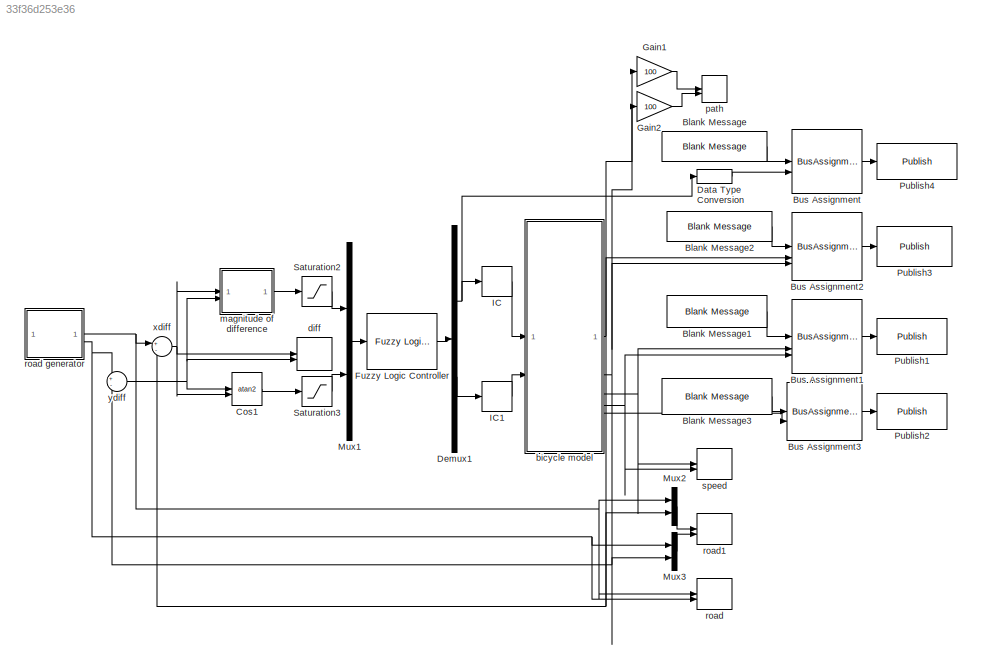
MODEL slx_33f36d253e36
KIND model
CONFIG AbsTol = auto
CONFIG EnableMultiTasking = off
CONFIG FixedStep = auto
CONFIG MaxStep = auto
CONFIG MinStep = auto
CONFIG RelTol = 1e-3
CONFIG SampleTimeConstraint = Unconstrained
CONFIG SolverName = VariableStepAuto
CONFIG StartTime = 0.0
CONFIG StopTime = 10.0
BLOCK [Reference] Blank Message  REF=ros2lib/Blank Message  (lib defined in slx_3c1549211f48)
  SourceBlock = ros2lib/Blank Message
  SourceType = ROS2 Blank Message
BLOCK [Reference] Blank Message1  REF=ros2lib/Blank Message  (lib defined in slx_3c1549211f48)
  SourceBlock = ros2lib/Blank Message
  SourceType = ROS2 Blank Message
BLOCK [Reference] Blank Message2  REF=ros2lib/Blank Message  (lib defined in slx_3c1549211f48)
  SourceBlock = ros2lib/Blank Message
  SourceType = ROS2 Blank Message
BLOCK [Reference] Blank Message3  REF=ros2lib/Blank Message  (lib defined in slx_3c1549211f48)
  SourceBlock = ros2lib/Blank Message
  SourceType = ROS2 Blank Message
BLOCK [BusAssignment] Bus Assignment
  AssignedSignals = linear.x
BLOCK [BusAssignment] Bus Assignment1
  AssignedSignals = linear.x,linear.y
BLOCK [BusAssignment] Bus Assignment2
  AssignedSignals = position.x,position.y
BLOCK [BusAssignment] Bus Assignment3
  AssignedSignals = angular.z
BLOCK [Trigonometry] Cos1
  Operator = atan2
BLOCK [DataTypeConversion] Data Type Conversion
  RndMeth = Floor
  SaturateOnIntegerOverflow = off
BLOCK [Demux] Demux1
  Outputs = 2
BLOCK [Reference] Fuzzy Logic Controller  REF=fuzblock/Fuzzy Logic   (lib defined in mdl_858b3b3e7478)
Controller
  SourceBlock = fuzblock/Fuzzy Logic \nController
  SourceType = Fuzzy Inference System
BLOCK [Gain] Gain1
  Gain = 100
BLOCK [Gain] Gain2
  Gain = 100
BLOCK [InitialCondition] IC
  Value = 0
BLOCK [InitialCondition] IC1
  Value = 0
BLOCK [Mux] Mux1
  DisplayOption = bar
  Inputs = 2
BLOCK [Mux] Mux2
  DisplayOption = bar
  Inputs = 2
BLOCK [Mux] Mux3
  DisplayOption = bar
  Inputs = 2
BLOCK [Reference] Publish1  REF=ros2lib/Publish  (lib defined in slx_3c1549211f48)
  SourceBlock = ros2lib/Publish
  SourceType = ROS2 Publish
BLOCK [Reference] Publish2  REF=ros2lib/Publish  (lib defined in slx_3c1549211f48)
  SourceBlock = ros2lib/Publish
  SourceType = ROS2 Publish
BLOCK [Reference] Publish3  REF=ros2lib/Publish  (lib defined in slx_3c1549211f48)
  SourceBlock = ros2lib/Publish
  SourceType = ROS2 Publish
BLOCK [Reference] Publish4  REF=ros2lib/Publish  (lib defined in slx_3c1549211f48)
  SourceBlock = ros2lib/Publish
  SourceType = ROS2 Publish
BLOCK [Saturate] Saturation2
  LinearizeAsGain = off
  LowerLimit = 0
  UpperLimit = 100
BLOCK [Saturate] Saturation3
  LowerLimit = -1
  UpperLimit = 1
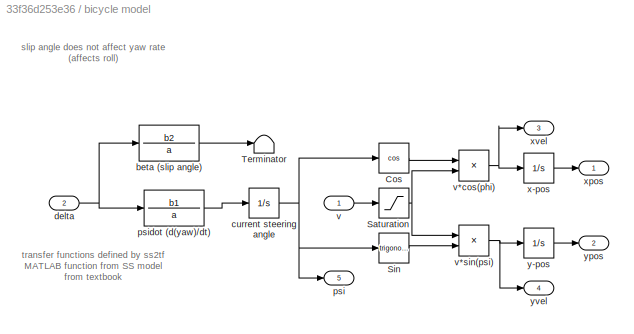
BLOCK [SubSystem] bicycle model
BLOCK [Trigonometry] bicycle model/Cos
  Operator = cos
BLOCK [Saturate] bicycle model/Saturation
  LowerLimit = -30
  UpperLimit = 30
BLOCK [Trigonometry] bicycle model/Sin
BLOCK [Terminator] bicycle model/Terminator
BLOCK [TransferFcn] bicycle model/beta (slip angle)
  ContinuousStateAttributes = 'beta'
  Denominator = a
  Numerator = b2
BLOCK [Integrator] bicycle model/current steering angle
BLOCK [Inport] bicycle model/delta
  OutDataTypeStr = double
  Port = 2
BLOCK [Outport] bicycle model/psi
  Port = 5
BLOCK [TransferFcn] bicycle model/psidot (d(yaw)//dt)
  ContinuousStateAttributes = 'psidot'
  Denominator = a
  Numerator = b1
  ParameterTunability = Optimized
BLOCK [Inport] bicycle model/v
BLOCK [Product] bicycle model/v*cos(phi)
BLOCK [Product] bicycle model/v*sin(psi)
BLOCK [Integrator] bicycle model/x-pos
BLOCK [Outport] bicycle model/xpos
BLOCK [Outport] bicycle model/xvel
  Port = 3
BLOCK [Integrator] bicycle model/y-pos
BLOCK [Outport] bicycle model/ypos
  Port = 2
BLOCK [Outport] bicycle model/yvel
  Port = 4
BLOCK [Record] diff
  CompatibilityTag = XY
  FileSettingsInternal = {"entries":[{"content":{"excelSettings":{"content":{},"type":"Streamout.ExcelSettings"}},"type":"Streamout.FileSettingStorage","uuid":"e11c2646-620e-4821-b31f-06dc8f4cd87f"}],"packageUris":["http://schema.mathworks.com/mf0/streamout_blocks/R2020a"],"version":"1.0"}
  Layout = [1 1]
  SignalsInternal = {"entries":[{"content":{"signals":[{"content":{"blockPath":["vehicleModel_23a/diff"],"dimensions":[1],"domain":"vehicleModel_23a/diff","lineColor":"#edb120","plots":[1],"port":1,"signalID":48,"signalName":"xdiff"},"type":"RecordBlkView.Signal","uuid":"8016eeb5-851e-4628-929a-2e9a0eab76ef"},{"content":{"blockPath":["vehicleModel_23a/diff"],"dimensions":[1],"domain":"vehicleModel_23a/diff","lineColo...<+323ch>
  VisualizationBindings = {"xyplotplugin":{"info":[{"series":[{"bindingParametersList":[{"parameter":"X-Axis","signalID":48,"signalName":"xdiff"},{"parameter":"Y-Axis","signalID":51,"signalName":"ydiff"}],"seriesID":14047}],"subplotID":1}]}}
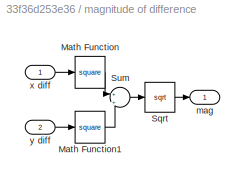
BLOCK [SubSystem] magnitude of difference
BLOCK [Math] magnitude of difference/Math Function
  Operator = square
BLOCK [Math] magnitude of difference/Math Function1
  Operator = square
BLOCK [Sqrt] magnitude of difference/Sqrt
BLOCK [Sum] magnitude of difference/Sum
  Inputs = +|+
BLOCK [Outport] magnitude of difference/mag
BLOCK [Inport] magnitude of difference/x diff
BLOCK [Inport] magnitude of difference/y diff
  Port = 2
BLOCK [Record] path
  CompatibilityTag = XY
  FileSettingsInternal = {"entries":[{"content":{"excelSettings":{"content":{},"type":"Streamout.ExcelSettings"}},"type":"Streamout.FileSettingStorage","uuid":"969ffc95-b704-45a7-aa8e-c06d5542069b"}],"packageUris":["http://schema.mathworks.com/mf0/streamout_blocks/R2020a"],"version":"1.0"}
  Layout = [1 1]
  SignalsInternal = {"entries":[{"content":{"signals":[{"content":{"blockPath":["vehicleModel_23a/path"],"dimensions":[1],"domain":"vehicleModel_23a/path","lineColor":"#77ac30","plots":[1],"port":1,"signalID":40,"signalName":"Gain"},"type":"RecordBlkView.Signal","uuid":"191c97f3-87f4-45f7-98a3-db8a951101c5"},{"content":{"blockPath":["vehicleModel_23a/path"],"dimensions":[1],"domain":"vehicleModel_23a/path","lineColor...<+322ch>
  VisualizationBindings = {"xyplotplugin":{"info":[{"series":[{"bindingParametersList":[{"parameter":"X-Axis","signalID":40,"signalName":"Gain"},{"parameter":"Y-Axis","signalID":43,"signalName":"Gain1"}],"seriesID":43259}],"subplotID":1}]}}
BLOCK [Record] road
  CompatibilityTag = XY
  FileSettingsInternal = {"entries":[{"content":{"excelSettings":{"content":{},"type":"Streamout.ExcelSettings"}},"type":"Streamout.FileSettingStorage","uuid":"0df6bbcf-3274-4560-95d0-a5963d703d9e"}],"packageUris":["http://schema.mathworks.com/mf0/streamout_blocks/R2020a"],"version":"1.0"}
  Layout = [1 1]
  SignalsInternal = {"entries":[{"content":{"signals":[{"content":{"blockPath":["vehicleModel_23a/road"],"dimensions":[1],"domain":"vehicleModel_23a/road","lineColor":"#a2142f","plots":[1],"port":1,"signalID":32,"signalName":"road generator:1"},"type":"RecordBlkView.Signal","uuid":"270aa9a5-a50a-4e5f-92ce-1ad2cb7d9aa4"},{"content":{"blockPath":["vehicleModel_23a/road"],"dimensions":[1],"domain":"vehicleModel_23a/road...<+345ch>
  VisualizationBindings = {"xyplotplugin":{"info":[{"series":[{"bindingParametersList":[{"parameter":"X-Axis","signalID":32,"signalName":"road generator:1"},{"parameter":"Y-Axis","signalID":35,"signalName":"road generator:2"}],"seriesID":20322}],"subplotID":1}]}}
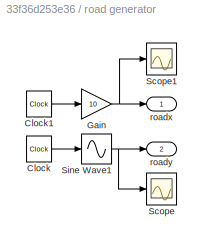
BLOCK [SubSystem] road generator
BLOCK [Clock] road generator/Clock
  Decimation = 1
BLOCK [Clock] road generator/Clock1
  Decimation = 1
BLOCK [Gain] road generator/Gain
  Gain = 10
BLOCK [Scope] road generator/Scope
  Floating = off
  NumInputPorts = 1
  ScopeSpecificationString = Simulink.scopes.TimeScopeBlockCfg('CurrentConfiguration', extmgr.ConfigurationSet(extmgr.Configuration('Core','General UI',true),extmgr.Configuration('Core','Source UI',true),extmgr.Configuration('Sources','WiredSimulink',true,'DataLoggingVariableName','ScopeData1'),extmgr.Configuration('Visuals','Time Domain',true,'SerializedDisplays',{struct('MinYLimReal','-12.49997','MaxYLimReal','12.49999','YL...<+1464ch>
BLOCK [Scope] road generator/Scope1
  Floating = off
  NumInputPorts = 1
  ScopeSpecificationString = Simulink.scopes.TimeScopeBlockCfg('CurrentConfiguration', extmgr.ConfigurationSet(extmgr.Configuration('Core','General UI',true),extmgr.Configuration('Core','Source UI',true),extmgr.Configuration('Sources','WiredSimulink',true,'DataLoggingVariableName','ScopeData2'),extmgr.Configuration('Visuals','Time Domain',true,'SerializedDisplays',{struct('MinYLimReal','-125.00000','MaxYLimReal','1125.00000',...<+1445ch>
BLOCK [Sin] road generator/Sine Wave1
  Amplitude = 10
  Frequency = 0.05
  Phase = 1
  SampleTime = 0
  TimeSource = Use external signal
BLOCK [Outport] road generator/roadx
BLOCK [Outport] road generator/roady
  Port = 2
BLOCK [Record] road1
  CompatibilityTag = XY
  FileSettingsInternal = {"entries":[{"content":{"excelSettings":{"content":{},"type":"Streamout.ExcelSettings"}},"type":"Streamout.FileSettingStorage","uuid":"477410f6-626d-4269-8c7e-1abe136939a3"}],"packageUris":["http://schema.mathworks.com/mf0/streamout_blocks/R2020a"],"version":"1.0"}
  Layout = [1 1]
  SignalsInternal = {"entries":[{"content":{"signals":[{"content":{"blockPath":["vehicleModel_23a/road1"],"dimensions":[2],"domain":"vehicleModel_23a/road1","hasChildren":true,"lineColor":"#a2142f","port":1,"signalID":8,"signalName":"Mux1"},"type":"RecordBlkView.Signal","uuid":"77dfd98c-52af-46ef-b0dc-734aa25e88e8"},{"content":{"blockPath":["vehicleModel_23a/road1"],"channel":[1],"dimensions":[2],"domain":"vehicleMod...<+1475ch>
  VisualizationBindings = {"xyplotplugin":{"info":[{"series":[{"bindingParametersList":[{"parameter":"X-Axis","signalID":10,"signalName":"Mux1(2)"},{"parameter":"Y-Axis","signalID":16,"signalName":"Mux2(1)"}],"seriesID":13883},{"bindingParametersList":[{"parameter":"X-Axis","signalID":9,"signalName":"Mux1(1)"},{"parameter":"Y-Axis","signalID":17,"signalName":"Mux2(2)"}],"seriesID":65135}],"subplotID":1}]}}
BLOCK [Record] speed
  CompatibilityTag = XY
  FileSettingsInternal = {"entries":[{"content":{"excelSettings":{"content":{},"type":"Streamout.ExcelSettings"}},"type":"Streamout.FileSettingStorage","uuid":"9188d7cb-5000-4f88-9939-3ef4f1a89e9c"}],"packageUris":["http://schema.mathworks.com/mf0/streamout_blocks/R2020a"],"version":"1.0"}
  Layout = [1 1]
  SignalsInternal = {"entries":[{"content":{"signals":[{"content":{"blockPath":["vehicleModel_23a/speed"],"dimensions":[1],"domain":"vehicleModel_23a/speed","lineColor":"#ff6929","plots":[1],"port":1,"signalID":24,"signalName":"bicycle model:3"},"type":"RecordBlkView.Signal","uuid":"1306c953-2d23-4a8f-88bc-7639a5a32ec7"},{"content":{"blockPath":["vehicleModel_23a/speed"],"dimensions":[1],"domain":"vehicleModel_23a/sp...<+347ch>
  VisualizationBindings = {"xyplotplugin":{"info":[{"series":[{"bindingParametersList":[{"parameter":"X-Axis","signalID":24,"signalName":"bicycle model:3"},{"parameter":"Y-Axis","signalID":27,"signalName":"bicycle model:4"}],"seriesID":11813}],"subplotID":1}]}}
BLOCK [Sum] xdiff
  Inputs = +-
BLOCK [Sum] ydiff
  Inputs = +-
ANNOTATION bicycle model: slip angle does not affect yaw rate (affects roll)
ANNOTATION bicycle model: transfer functions defined by ss2tf MATLAB function from SS model from textbook
LINE Blank Message1:1 -> Bus Assignment1:1
LINE Blank Message2:1 -> Bus Assignment2:1
LINE Blank Message3:1 -> Bus Assignment3:1
LINE Blank Message:1 -> Bus Assignment:1
LINE Bus Assignment1:1 -> Publish1:1
LINE Bus Assignment2:1 -> Publish3:1
LINE Bus Assignment3:1 -> Publish2:1
LINE Bus Assignment:1 -> Publish4:1
LINE Cos1:1 -> Saturation3:1
LINE Data Type Conversion:1 -> Bus Assignment:2
NET Demux1:1 -> Data Type Conversion:1, IC:1
LINE Demux1:2 -> IC1:1
LINE Fuzzy Logic Controller:1 -> Demux1:1
LINE Gain1:1 -> path:1
LINE Gain2:1 -> path:2
LINE IC1:1 -> bicycle model:2
LINE IC:1 -> bicycle model:1
LINE Mux1:1 -> Fuzzy Logic Controller:1
LINE Mux2:1 -> road1:1
LINE Mux3:1 -> road1:2
LINE Saturation2:1 -> Mux1:1
LINE Saturation3:1 -> Mux1:2
LINE bicycle model/Cos:1 -> bicycle model/v*cos(phi):1
NET bicycle model/Saturation:1 -> bicycle model/v*cos(phi):2, bicycle model/v*sin(psi):1
LINE bicycle model/Sin:1 -> bicycle model/v*sin(psi):2
LINE bicycle model/beta (slip angle):1 -> bicycle model/Terminator:1
NET bicycle model/current steering angle:1 -> bicycle model/Cos:1, bicycle model/Sin:1, bicycle model/psi:1
NET bicycle model/delta:1 -> bicycle model/beta (slip angle):1, bicycle model/psidot (d(yaw)//dt):1
LINE bicycle model/psidot (d(yaw)//dt):1 -> bicycle model/current steering angle:1
NET bicycle model/v*cos(phi):1 -> bicycle model/x-pos:1, bicycle model/xvel:1
NET bicycle model/v*sin(psi):1 -> bicycle model/y-pos:1, bicycle model/yvel:1
LINE bicycle model/v:1 -> bicycle model/Saturation:1
LINE bicycle model/x-pos:1 -> bicycle model/xpos:1
LINE bicycle model/y-pos:1 -> bicycle model/ypos:1
NET bicycle model:1 -> Bus Assignment2:2, Gain1:1, Mux2:2, xdiff:2
NET bicycle model:2 -> Bus Assignment2:3, Gain2:1, Mux3:2, ydiff:2
NET bicycle model:3 -> Bus Assignment1:2, speed:1
NET bicycle model:4 -> Bus Assignment1:3, speed:2
LINE bicycle model:5 -> Bus Assignment3:2
LINE magnitude of difference/Math Function1:1 -> magnitude of difference/Sum:2
LINE magnitude of difference/Math Function:1 -> magnitude of difference/Sum:1
LINE magnitude of difference/Sqrt:1 -> magnitude of difference/mag:1
LINE magnitude of difference/Sum:1 -> magnitude of difference/Sqrt:1
LINE magnitude of difference/x diff:1 -> magnitude of difference/Math Function:1
LINE magnitude of difference/y diff:1 -> magnitude of difference/Math Function1:1
LINE magnitude of difference:1 -> Saturation2:1
LINE road generator/Clock1:1 -> road generator/Gain:1
LINE road generator/Clock:1 -> road generator/Sine Wave1:1
NET road generator/Gain:1 -> road generator/Scope1:1, road generator/roadx:1
NET road generator/Sine Wave1:1 -> road generator/Scope:1, road generator/roady:1
NET road generator:1 -> Mux2:1, road:1, xdiff:1
NET road generator:2 -> Mux3:1, road:2, ydiff:1
NET xdiff:1 -> Cos1:2, diff:1, magnitude of difference:1
NET ydiff:1 -> Cos1:1, diff:2, magnitude of difference:2
note: NET lines group one-source signal fan-out (src -> all destinations, sorted); 1:1 wires keep LINE
